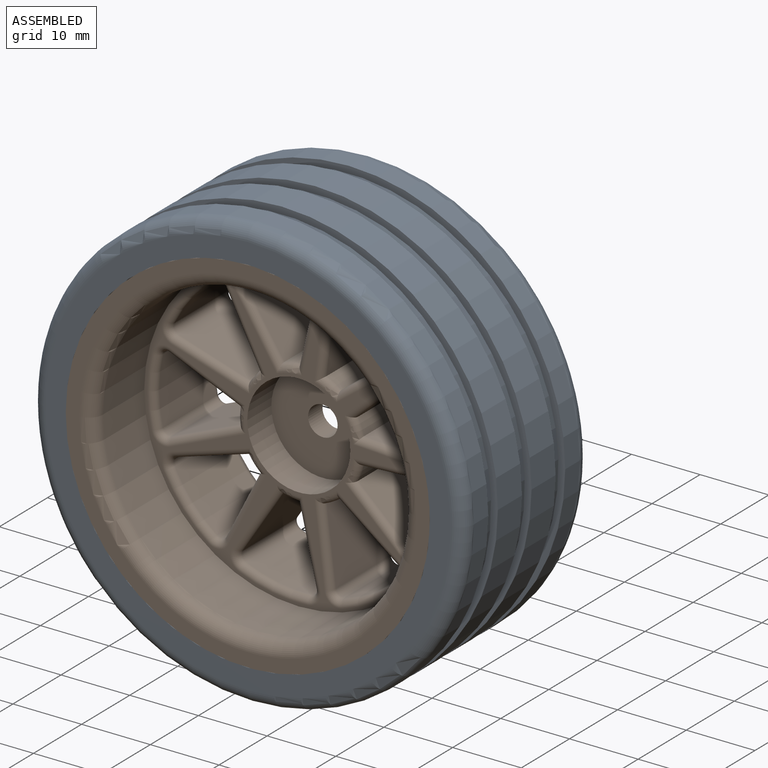
[diagram: assembled view]
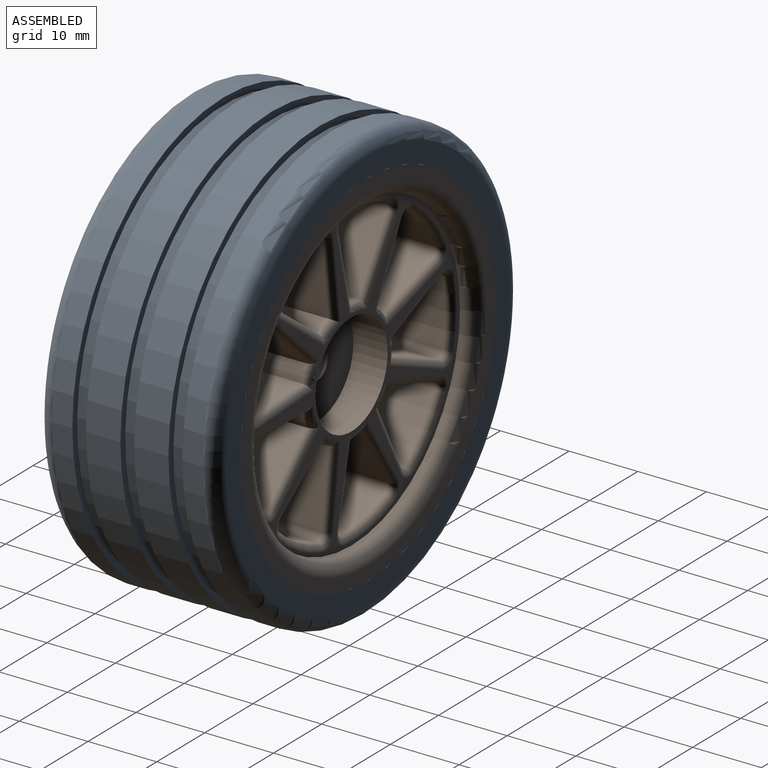
[diagram: assembled view, second angle]
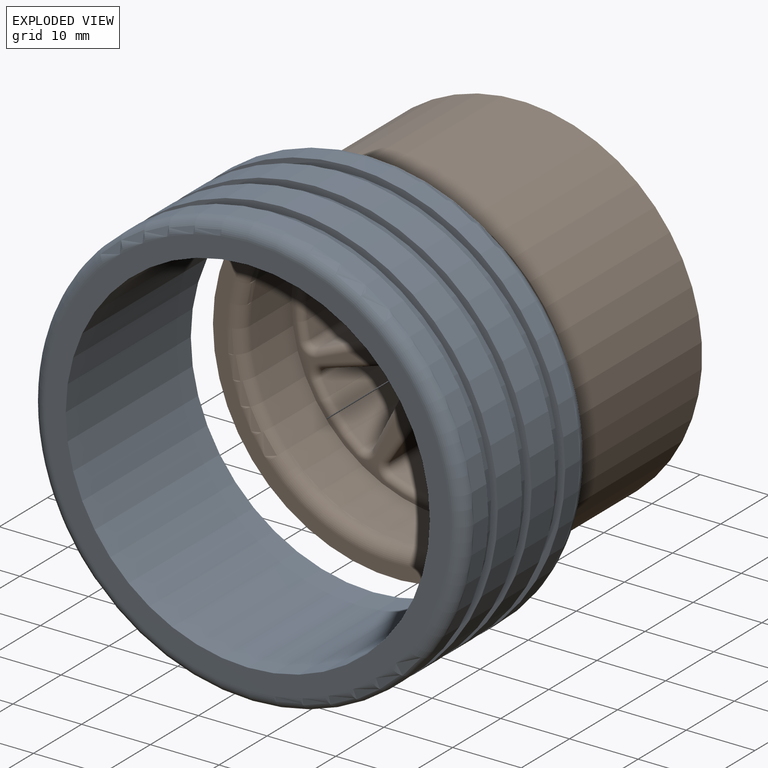
[diagram: exploded view]
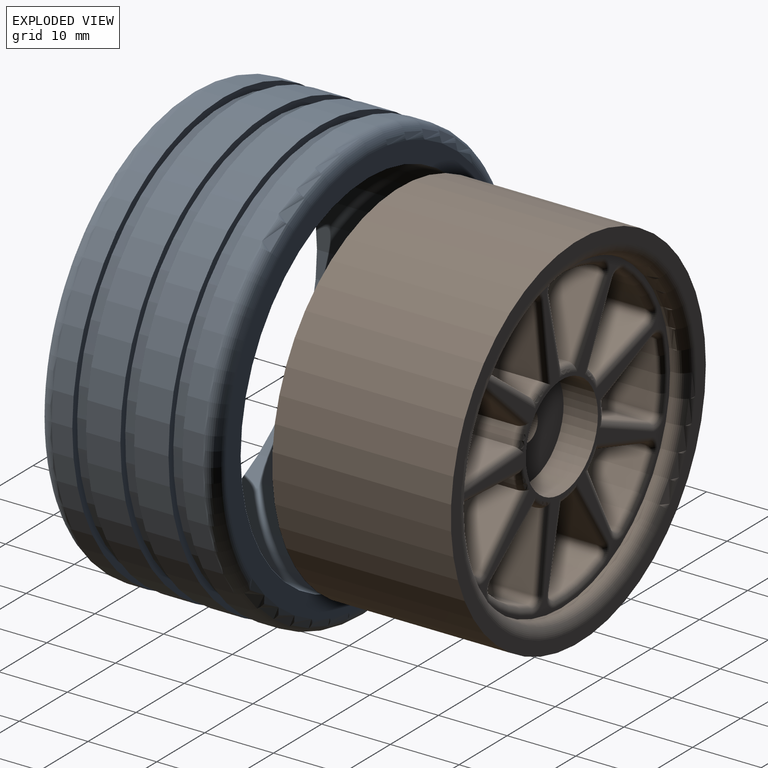
[diagram: exploded view, second angle]
ASSEMBLY  parts=2 mates=2
PART A: 18 faces, bbox 68.2x26x68.2 mm
  f0: plane 63x63mm, normal (0,-1,0), area 194.8mm2, adj f1,f17
  f1: cylinder r=31.5mm len=63mm, axis (0,-1,0), area 593.8mm2, adj f0,f2
  f2: torus R=29.5mm, axis (0,-1,0), area 607.4mm2, adj f1,f3
  f3: plane 59x59mm, normal (0,1,0), area 527.8mm2, adj f2,f4
  f4: cylinder r=26.5mm len=53mm, axis (0,-1,0), area 4329.1mm2, adj f3,f5
  f5: plane 59x59mm, normal (0,-1,0), area 527.8mm2, adj f4,f6
  f6: torus R=29.5mm, axis (0,-1,0), area 607.4mm2, adj f5,f7
  f7: cylinder r=31.5mm len=63mm, axis (0,-1,0), area 593.8mm2, adj f6,f8
  f8: plane 63x63mm, normal (0,1,0), area 194.8mm2, adj f7,f9
  f9: cylinder r=30.5mm len=61mm, axis (0,-1,0), area 383.3mm2, adj f8,f10
  f10: plane 63x63mm, normal (0,-1,0), area 194.8mm2, adj f9,f11
  f11: cylinder r=31.5mm len=63mm, axis (0,-1,0), area 989.6mm2, adj f10,f12
  f12: plane 63x63mm, normal (0,1,0), area 194.8mm2, adj f11,f13
  f13: cylinder r=30.5mm len=61mm, axis (0,-1,0), area 383.3mm2, adj f12,f14
  f14: plane 63x63mm, normal (0,-1,0), area 194.8mm2, adj f13,f15
  f15: cylinder r=31.5mm len=63mm, axis (0,-1,0), area 989.6mm2, adj f14,f16
  f16: plane 63x63mm, normal (0,1,0), area 194.8mm2, adj f15,f17
  f17: cylinder r=30.5mm len=61mm, axis (0,-1,0), area 383.3mm2, adj f0,f16
PART B: 176 faces, bbox 26x56.1x56.1 mm
  f0: cylinder r=2.15mm len=4.3mm, axis (-1,0,0), area 40.5mm2, adj f9,f11
  f1: plane 45x45mm, normal (1,0,0), area 254.4mm2, adj f7,f10,f48,f49,f50,f51,f54,f60
  f2: plane 45x45mm, normal (-1,0,0), area 254.4mm2, adj f3,f8,f53,f55,f57,f58,f59,f65
  f3: cylinder r=22.5mm len=45mm, axis (-1,0,0), area 1215.8mm2, adj f2,f156
  f4: plane 53x53mm, normal (-1,0,0), area 320.4mm2, adj f5,f156
  f5: cylinder r=26.5mm len=53mm, axis (-1,0,0), area 4329.1mm2, adj f4,f6
  f6: plane 53x53mm, normal (1,0,0), area 320.4mm2, adj f5,f157
  f7: cylinder r=22.5mm len=45mm, axis (-1,0,0), area 56.5mm2, adj f1,f157
  f8: cylinder r=7.5mm len=15mm, axis (-1,0,0), area 235.6mm2, adj f2,f9
  f9: plane 15x15mm, normal (-1,0,0), area 162.2mm2, adj f0,f8
  f10: cylinder r=7.5mm len=15mm, axis (1,0,0), area 235.6mm2, adj f1,f11
  f11: plane 15x15mm, normal (1,0,0), area 162.2mm2, adj f0,f10
  f12: cylinder r=21mm len=11mm, axis (1,0,0), area 108mm2, adj f147,f148,f152,f153
  f13: plane 11x10.15mm, normal (0,0.92,0.39), area 121.3mm2, adj f14,f146,f152,f155
  f14: cylinder r=9mm len=11mm, axis (1,0,0), area 27.6mm2, adj f13,f15,f166,f175
  f15: plane 11x10.15mm, normal (0,-0.92,0.39), area 121.3mm2, adj f14,f144,f148,f149
  f16: cylinder r=21mm len=11mm, axis (1,0,0), area 108mm2, adj f135,f136,f140,f141
  f17: plane 11x9.25mm, normal (0,0.54,-0.84), area 121.3mm2, adj f18,f134,f140,f143
  f18: cylinder r=9mm len=11mm, axis (1,0,0), area 27.6mm2, adj f17,f19,f164,f174
  f19: plane 11x10.75mm, normal (0,0.22,0.97), area 121.3mm2, adj f18,f132,f136,f137
  f20: cylinder r=21mm len=11mm, axis (1,0,0), area 108mm2, adj f123,f124,f128,f129
  f21: plane 11x10.54mm, normal (0,0.96,-0.29), area 121.3mm2, adj f22,f122,f128,f131
  f22: cylinder r=9mm len=11mm, axis (1,0,0), area 27.6mm2, adj f21,f23,f165,f173
  f23: plane 11x9.82mm, normal (0,-0.45,0.89), area 121.3mm2, adj f22,f120,f124,f125
  f24: cylinder r=21mm len=11mm, axis (1,0,0), area 108mm2, adj f111,f112,f116,f117
  f25: plane 11x8.07mm, normal (0,-0.73,-0.68), area 121.3mm2, adj f26,f110,f116,f119
  f26: cylinder r=9mm len=11mm, axis (1,0,0), area 27.6mm2, adj f25,f27,f162,f172
  f27: plane 11.01x11mm, normal (0,1,-0.05), area 121.3mm2, adj f26,f108,f112,f113
  f28: cylinder r=21mm len=11mm, axis (1,0,0), area 108mm2, adj f99,f100,f104,f105
  f29: plane 11x10.94mm, normal (0,-0.12,-0.99), area 121.3mm2, adj f30,f98,f104,f107
  f30: cylinder r=9mm len=11mm, axis (1,0,0), area 27.6mm2, adj f29,f31,f163,f171
  f31: plane 11x8.8mm, normal (0,0.8,0.6), area 121.3mm2, adj f30,f96,f100,f101
  f32: cylinder r=21mm len=11mm, axis (1,0,0), area 108mm2, adj f87,f88,f92,f93
  f33: plane 11x8.8mm, normal (0,-0.8,0.6), area 121.3mm2, adj f34,f86,f92,f95
  f34: cylinder r=9mm len=11mm, axis (1,0,0), area 27.6mm2, adj f33,f35,f160,f170
  f35: plane 11x10.94mm, normal (0,0.12,-0.99), area 121.3mm2, adj f34,f84,f88,f89
  f36: cylinder r=21mm len=11mm, axis (1,0,0), area 108mm2, adj f75,f76,f80,f81
  f37: plane 11.01x11mm, normal (0,-1,-0.05), area 121.3mm2, adj f38,f74,f80,f83
  f38: cylinder r=9mm len=11mm, axis (1,0,0), area 27.6mm2, adj f37,f39,f161,f169
  f39: plane 11x8.07mm, normal (0,0.73,-0.68), area 121.3mm2, adj f38,f72,f76,f77
  f40: cylinder r=21mm len=11mm, axis (1,0,0), area 108mm2, adj f63,f64,f68,f69
  f41: plane 11x9.82mm, normal (0,0.45,0.89), area 121.3mm2, adj f42,f62,f68,f71
  f42: cylinder r=9mm len=11mm, axis (1,0,0), area 27.6mm2, adj f41,f43,f158,f168
  f43: plane 11x10.54mm, normal (0,-0.96,-0.29), area 121.3mm2, adj f42,f60,f64,f65
  f44: cylinder r=21mm len=11mm, axis (1,0,0), area 108mm2, adj f51,f52,f56,f57
  f45: plane 11x10.75mm, normal (0,-0.22,0.97), area 121.3mm2, adj f46,f50,f56,f59
  f46: cylinder r=9mm len=11mm, axis (1,0,0), area 27.6mm2, adj f45,f47,f159,f167
  f47: plane 11x9.25mm, normal (0,-0.54,-0.84), area 121.3mm2, adj f46,f48,f52,f53
  f48: cylinder r=1mm len=10.47mm, axis (0,-0.84,0.54), area 17.8mm2, adj f1,f47,f49,f159
  f49: torus R=2mm, axis (-1,0,0), area 3.7mm2, adj f1,f48,f51,f52
  f50: cylinder r=1mm len=11.76mm, axis (0,0.97,0.22), area 17.8mm2, adj f1,f45,f54,f159
  f51: torus R=22mm, axis (-1,0,0), area 15.7mm2, adj f1,f44,f49,f54
  f52: cylinder r=1mm len=11mm, axis (1,0,0), area 19.1mm2, adj f44,f47,f49,f55
  f53: cylinder r=1mm len=10.47mm, axis (0,-0.84,0.54), area 17.8mm2, adj f2,f47,f55,f167
  f54: torus R=2mm, axis (-1,0,0), area 3.7mm2, adj f1,f50,f51,f56
  f55: torus R=2mm, axis (-1,0,0), area 3.7mm2, adj f2,f52,f53,f57
  f56: cylinder r=1mm len=11mm, axis (1,0,0), area 19.1mm2, adj f44,f45,f54,f58
  f57: torus R=22mm, axis (-1,0,0), area 15.7mm2, adj f2,f44,f55,f58
  f58: torus R=2mm, axis (-1,0,0), area 3.7mm2, adj f2,f56,f57,f59
  f59: cylinder r=1mm len=11.76mm, axis (0,0.97,0.22), area 17.8mm2, adj f2,f45,f58,f167
  f60: cylinder r=1mm len=11.61mm, axis (0,-0.29,0.96), area 17.8mm2, adj f1,f43,f61,f158
  f61: torus R=2mm, axis (-1,0,0), area 3.7mm2, adj f1,f60,f63,f64
  f62: cylinder r=1mm len=10.99mm, axis (0,0.89,-0.45), area 17.8mm2, adj f1,f41,f66,f158
  f63: torus R=22mm, axis (-1,0,0), area 15.7mm2, adj f1,f40,f61,f66
  f64: cylinder r=1mm len=11mm, axis (1,0,0), area 19.1mm2, adj f40,f43,f61,f67
  f65: cylinder r=1mm len=11.61mm, axis (0,-0.29,0.96), area 17.8mm2, adj f2,f43,f67,f168
  f66: torus R=2mm, axis (-1,0,0), area 3.7mm2, adj f1,f62,f63,f68
  f67: torus R=2mm, axis (-1,0,0), area 3.7mm2, adj f2,f64,f65,f69
  f68: cylinder r=1mm len=11mm, axis (1,0,0), area 19.1mm2, adj f40,f41,f66,f70
  f69: torus R=22mm, axis (-1,0,0), area 15.7mm2, adj f2,f40,f67,f70
  f70: torus R=2mm, axis (-1,0,0), area 3.7mm2, adj f2,f68,f69,f71
  f71: cylinder r=1mm len=10.99mm, axis (0,0.89,-0.45), area 17.8mm2, adj f2,f41,f70,f168
  f72: cylinder r=1mm len=9.34mm, axis (0,-0.68,-0.73), area 17.8mm2, adj f1,f39,f73,f161
  f73: torus R=2mm, axis (-1,0,0), area 3.7mm2, adj f1,f72,f75,f76
  f74: cylinder r=1mm len=11.87mm, axis (0,-0.05,1), area 17.8mm2, adj f1,f37,f78,f161
  f75: torus R=22mm, axis (-1,0,0), area 15.7mm2, adj f1,f36,f73,f78
  f76: cylinder r=1mm len=11mm, axis (1,0,0), area 19.1mm2, adj f36,f39,f73,f79
  f77: cylinder r=1mm len=9.34mm, axis (0,-0.68,-0.73), area 17.8mm2, adj f2,f39,f79,f169
  f78: torus R=2mm, axis (-1,0,0), area 3.7mm2, adj f1,f74,f75,f80
  f79: torus R=2mm, axis (-1,0,0), area 3.7mm2, adj f2,f76,f77,f81
  f80: cylinder r=1mm len=11mm, axis (1,0,0), area 19.1mm2, adj f36,f37,f78,f82
  f81: torus R=22mm, axis (-1,0,0), area 15.7mm2, adj f2,f36,f79,f82
  f82: torus R=2mm, axis (-1,0,0), area 3.7mm2, adj f2,f80,f81,f83
  f83: cylinder r=1mm len=11.87mm, axis (0,-0.05,1), area 17.8mm2, adj f2,f37,f82,f169
  f84: cylinder r=1mm len=11.87mm, axis (0,-0.99,-0.12), area 17.8mm2, adj f1,f35,f85,f160
  f85: torus R=2mm, axis (-1,0,0), area 3.7mm2, adj f1,f84,f87,f88
  f86: cylinder r=1mm len=10.05mm, axis (0,0.6,0.8), area 17.8mm2, adj f1,f33,f90,f160
  f87: torus R=22mm, axis (-1,0,0), area 15.7mm2, adj f1,f32,f85,f90
  f88: cylinder r=1mm len=11mm, axis (1,0,0), area 19.1mm2, adj f32,f35,f85,f91
  f89: cylinder r=1mm len=11.87mm, axis (0,-0.99,-0.12), area 17.8mm2, adj f2,f35,f91,f170
  f90: torus R=2mm, axis (-1,0,0), area 3.7mm2, adj f1,f86,f87,f92
  f91: torus R=2mm, axis (-1,0,0), area 3.7mm2, adj f2,f88,f89,f93
  f92: cylinder r=1mm len=11mm, axis (1,0,0), area 19.1mm2, adj f32,f33,f90,f94
  f93: torus R=22mm, axis (-1,0,0), area 15.7mm2, adj f2,f32,f91,f94
  f94: torus R=2mm, axis (-1,0,0), area 3.7mm2, adj f2,f92,f93,f95
  f95: cylinder r=1mm len=10.05mm, axis (0,0.6,0.8), area 17.8mm2, adj f2,f33,f94,f170
  f96: cylinder r=1mm len=10.05mm, axis (0,0.6,-0.8), area 17.8mm2, adj f1,f31,f97,f163
  f97: torus R=2mm, axis (-1,0,0), area 3.7mm2, adj f1,f96,f99,f100
  f98: cylinder r=1mm len=11.87mm, axis (0,-0.99,0.12), area 17.8mm2, adj f1,f29,f102,f163
  f99: torus R=22mm, axis (-1,0,0), area 15.7mm2, adj f1,f28,f97,f102
  f100: cylinder r=1mm len=11mm, axis (1,0,0), area 19.1mm2, adj f28,f31,f97,f103
  f101: cylinder r=1mm len=10.05mm, axis (0,0.6,-0.8), area 17.8mm2, adj f2,f31,f103,f171
  f102: torus R=2mm, axis (-1,0,0), area 3.7mm2, adj f1,f98,f99,f104
  f103: torus R=2mm, axis (-1,0,0), area 3.7mm2, adj f2,f100,f101,f105
  f104: cylinder r=1mm len=11mm, axis (1,0,0), area 19.1mm2, adj f28,f29,f102,f106
  f105: torus R=22mm, axis (-1,0,0), area 15.7mm2, adj f2,f28,f103,f106
  f106: torus R=2mm, axis (-1,0,0), area 3.7mm2, adj f2,f104,f105,f107
  f107: cylinder r=1mm len=11.87mm, axis (0,-0.99,0.12), area 17.8mm2, adj f2,f29,f106,f171
  f108: cylinder r=1mm len=11.87mm, axis (0,-0.05,-1), area 17.8mm2, adj f1,f27,f109,f162
  f109: torus R=2mm, axis (-1,0,0), area 3.7mm2, adj f1,f108,f111,f112
  f110: cylinder r=1mm len=9.34mm, axis (0,-0.68,0.73), area 17.8mm2, adj f1,f25,f114,f162
  f111: torus R=22mm, axis (-1,0,0), area 15.7mm2, adj f1,f24,f109,f114
  f112: cylinder r=1mm len=11mm, axis (1,0,0), area 19.1mm2, adj f24,f27,f109,f115
  f113: cylinder r=1mm len=11.87mm, axis (0,-0.05,-1), area 17.8mm2, adj f2,f27,f115,f172
  f114: torus R=2mm, axis (-1,0,0), area 3.7mm2, adj f1,f110,f111,f116
  f115: torus R=2mm, axis (-1,0,0), area 3.7mm2, adj f2,f112,f113,f117
  f116: cylinder r=1mm len=11mm, axis (1,0,0), area 19.1mm2, adj f24,f25,f114,f118
  f117: torus R=22mm, axis (-1,0,0), area 15.7mm2, adj f2,f24,f115,f118
  f118: torus R=2mm, axis (-1,0,0), area 3.7mm2, adj f2,f116,f117,f119
  f119: cylinder r=1mm len=9.34mm, axis (0,-0.68,0.73), area 17.8mm2, adj f2,f25,f118,f172
  f120: cylinder r=1mm len=10.99mm, axis (0,0.89,0.45), area 17.8mm2, adj f1,f23,f121,f165
  f121: torus R=2mm, axis (-1,0,0), area 3.7mm2, adj f1,f120,f123,f124
  f122: cylinder r=1mm len=11.61mm, axis (0,-0.29,-0.96), area 17.8mm2, adj f1,f21,f126,f165
  f123: torus R=22mm, axis (-1,0,0), area 15.7mm2, adj f1,f20,f121,f126
  f124: cylinder r=1mm len=11mm, axis (1,0,0), area 19.1mm2, adj f20,f23,f121,f127
  f125: cylinder r=1mm len=10.99mm, axis (0,0.89,0.45), area 17.8mm2, adj f2,f23,f127,f173
  f126: torus R=2mm, axis (-1,0,0), area 3.7mm2, adj f1,f122,f123,f128
  f127: torus R=2mm, axis (-1,0,0), area 3.7mm2, adj f2,f124,f125,f129
  f128: cylinder r=1mm len=11mm, axis (1,0,0), area 19.1mm2, adj f20,f21,f126,f130
  f129: torus R=22mm, axis (-1,0,0), area 15.7mm2, adj f2,f20,f127,f130
  f130: torus R=2mm, axis (-1,0,0), area 3.7mm2, adj f2,f128,f129,f131
  f131: cylinder r=1mm len=11.61mm, axis (0,-0.29,-0.96), area 17.8mm2, adj f2,f21,f130,f173
  f132: cylinder r=1mm len=11.76mm, axis (0,0.97,-0.22), area 17.8mm2, adj f1,f19,f133,f164
  f133: torus R=2mm, axis (-1,0,0), area 3.7mm2, adj f1,f132,f135,f136
  f134: cylinder r=1mm len=10.47mm, axis (0,-0.84,-0.54), area 17.8mm2, adj f1,f17,f138,f164
  f135: torus R=22mm, axis (-1,0,0), area 15.7mm2, adj f1,f16,f133,f138
  f136: cylinder r=1mm len=11mm, axis (1,0,0), area 19.1mm2, adj f16,f19,f133,f139
  f137: cylinder r=1mm len=11.76mm, axis (0,0.97,-0.22), area 17.8mm2, adj f2,f19,f139,f174
  f138: torus R=2mm, axis (-1,0,0), area 3.7mm2, adj f1,f134,f135,f140
  f139: torus R=2mm, axis (-1,0,0), area 3.7mm2, adj f2,f136,f137,f141
  f140: cylinder r=1mm len=11mm, axis (1,0,0), area 19.1mm2, adj f16,f17,f138,f142
  f141: torus R=22mm, axis (-1,0,0), area 15.7mm2, adj f2,f16,f139,f142
  f142: torus R=2mm, axis (-1,0,0), area 3.7mm2, adj f2,f140,f141,f143
  f143: cylinder r=1mm len=10.47mm, axis (0,-0.84,-0.54), area 17.8mm2, adj f2,f17,f142,f174
  f144: cylinder r=1mm len=11.29mm, axis (0,0.39,0.92), area 17.8mm2, adj f1,f15,f145,f166
  f145: torus R=2mm, axis (-1,0,0), area 3.7mm2, adj f1,f144,f147,f148
  f146: cylinder r=1mm len=11.29mm, axis (0,0.39,-0.92), area 17.8mm2, adj f1,f13,f150,f166
  f147: torus R=22mm, axis (-1,0,0), area 15.7mm2, adj f1,f12,f145,f150
  f148: cylinder r=1mm len=11mm, axis (1,0,0), area 19.1mm2, adj f12,f15,f145,f151
  f149: cylinder r=1mm len=11.29mm, axis (0,0.39,0.92), area 17.8mm2, adj f2,f15,f151,f175
  f150: torus R=2mm, axis (-1,0,0), area 3.7mm2, adj f1,f146,f147,f152
  f151: torus R=2mm, axis (-1,0,0), area 3.7mm2, adj f2,f148,f149,f153
  f152: cylinder r=1mm len=11mm, axis (1,0,0), area 19.1mm2, adj f12,f13,f150,f154
  f153: torus R=22mm, axis (-1,0,0), area 15.7mm2, adj f2,f12,f151,f154
  f154: torus R=2mm, axis (-1,0,0), area 3.7mm2, adj f2,f152,f153,f155
  f155: cylinder r=1mm len=11.29mm, axis (0,0.39,-0.92), area 17.8mm2, adj f2,f13,f154,f175
  f156: torus R=24.5mm, axis (1,0,0), area 458.5mm2, adj f3,f4
  f157: torus R=24.5mm, axis (1,0,0), area 458.5mm2, adj f6,f7
  f158: torus R=8mm, axis (-1,0,0), area 4.7mm2, adj f1,f42,f60,f62
  f159: torus R=8mm, axis (-1,0,0), area 4.7mm2, adj f1,f46,f48,f50
  f160: torus R=8mm, axis (-1,0,0), area 4.7mm2, adj f1,f34,f84,f86
  f161: torus R=8mm, axis (-1,0,0), area 4.7mm2, adj f1,f38,f72,f74
  f162: torus R=8mm, axis (-1,0,0), area 4.7mm2, adj f1,f26,f108,f110
  f163: torus R=8mm, axis (-1,0,0), area 4.7mm2, adj f1,f30,f96,f98
  f164: torus R=8mm, axis (-1,0,0), area 4.7mm2, adj f1,f18,f132,f134
  f165: torus R=8mm, axis (-1,0,0), area 4.7mm2, adj f1,f22,f120,f122
  f166: torus R=8mm, axis (-1,0,0), area 4.7mm2, adj f1,f14,f144,f146
  f167: torus R=8mm, axis (-1,0,0), area 4.7mm2, adj f2,f46,f53,f59
  f168: torus R=8mm, axis (-1,0,0), area 4.7mm2, adj f2,f42,f65,f71
  f169: torus R=8mm, axis (-1,0,0), area 4.7mm2, adj f2,f38,f77,f83
  f170: torus R=8mm, axis (-1,0,0), area 4.7mm2, adj f2,f34,f89,f95
  f171: torus R=8mm, axis (-1,0,0), area 4.7mm2, adj f2,f30,f101,f107
  f172: torus R=8mm, axis (-1,0,0), area 4.7mm2, adj f2,f26,f113,f119
  f173: torus R=8mm, axis (-1,0,0), area 4.7mm2, adj f2,f22,f125,f131
  f174: torus R=8mm, axis (-1,0,0), area 4.7mm2, adj f2,f18,f137,f143
  f175: torus R=8mm, axis (-1,0,0), area 4.7mm2, adj f2,f14,f149,f155
PLACE A t=(-35.07,-16.78,-26.38)mm
PLACE B rot(axis=(-0.58,-0.58,0.58),120deg) t=(-35.07,9.22,-26.38)mm
MATE cylindrical B.f3 <-> A.f1  axis (0,-1,0) through (-35.07,-3.78,-26.38)mm
MATE planar A.f1 <-> B.f0  axis (0,-1,0) through (-35.07,-16.78,-26.38)mm
